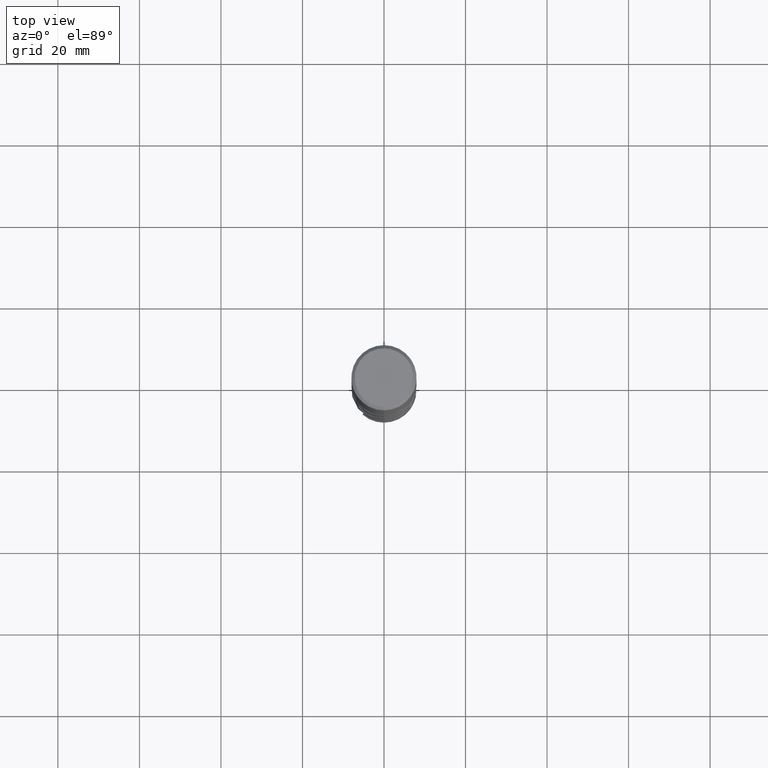
[diagram: clean part render]
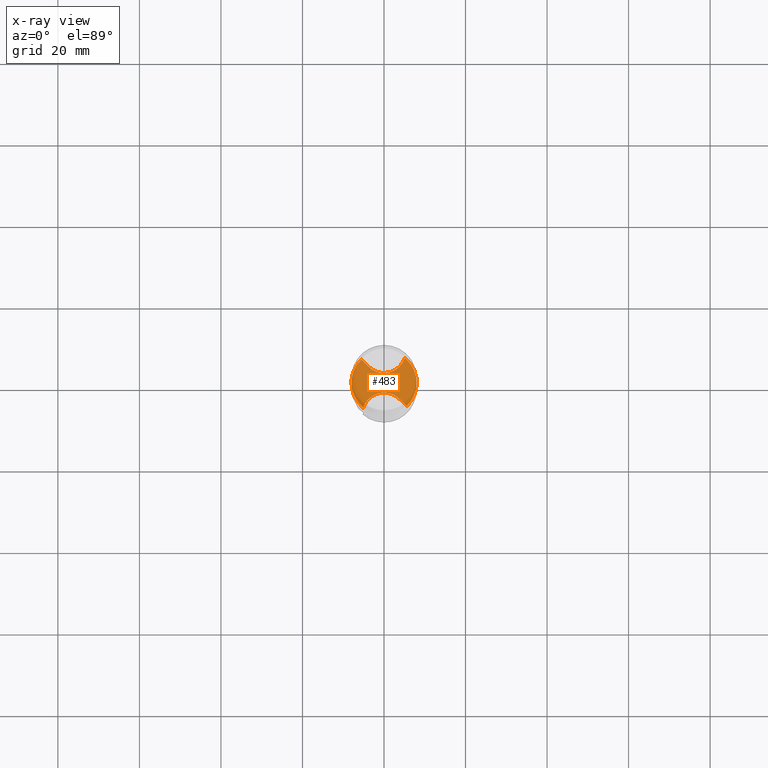
[diagram: x-ray — body ghosted, one internal face saturated and labeled with its STEP entity id]
A machine part, top view, then the same camera in x-ray: the body is ghosted and one INTERNAL B-rep face — a face not visible from any outside direction — is saturated and labeled: STEP entity #483.
In plain terms, the highlighted planar face has unit normal (-0, 0, 1).
Its self-contained STEP definition (entity closure, byte-faithful):
#325=VERTEX_POINT('',#807);
#369=EDGE_CURVE('',#465,#623,#855,.T.);
#417=VERTEX_POINT('',#907);
#465=VERTEX_POINT('',#960);
#483=ADVANCED_FACE('',(#980),#981,.T.);
#501=VERTEX_POINT('',#1003);
#567=EDGE_CURVE('',#501,#417,#1073,.T.);
#623=VERTEX_POINT('',#1134);
#657=EDGE_CURVE('',#683,#325,#1170,.T.);
#669=EDGE_CURVE('',#501,#623,#1183,.T.);
#683=VERTEX_POINT('',#1197);
#697=EDGE_CURVE('',#417,#325,#1211,.T.);
#699=EDGE_CURVE('',#683,#465,#1213,.T.);
#807=CARTESIAN_POINT('',(5.56186814983096,-5.75013240664039,-74.3));
#855=B_SPLINE_CURVE_WITH_KNOTS('',3,(#3176,#3177,#3178,#3179),.UNSPECIFIED.,.F.,.F.,(4,4),(0.0,5.75465496223208),.UNSPECIFIED.);
#907=CARTESIAN_POINT('',(3.77436116390051,-3.96243725254428,-74.3));
#960=CARTESIAN_POINT('',(-3.77436116390051,3.96243725254428,-74.3));
#980=FACE_OUTER_BOUND('',#5328,.T.);
#981=PLANE('',#5329);
#1003=CARTESIAN_POINT('',(-5.09530569940748,-6.16735436306246,-74.3));
#1073=B_SPLINE_CURVE_WITH_KNOTS('',3,(#5866,#5867,#5868,#5869,#5870,#5871,#5872,#5873,#5874,#5875,#5876,#5877,#5878,#5879,#5880,#5881),.UNSPECIFIED.,.F.,.F.,(4,2,2,2,2,2,2,4),(0.0,2.08337084065761,4.16657645136109,6.24975712284436,8.33303368603549,10.4164709573417,11.6677842785257,12.9191122973435),.UNSPECIFIED.);
#1134=CARTESIAN_POINT('',(-5.56186814983096,5.75013240664038,-74.3));
#1170=CIRCLE('',#6612,7.9999);
#1183=CIRCLE('',#6807,7.9999);
#1197=CARTESIAN_POINT('',(5.09530569940748,6.16735436306246,-74.3));
#1211=B_SPLINE_CURVE_WITH_KNOTS('',3,(#7254,#7255,#7256,#7257),.UNSPECIFIED.,.F.,.F.,(4,4),(0.0,5.75465496223208),.UNSPECIFIED.);
#1213=B_SPLINE_CURVE_WITH_KNOTS('',3,(#7260,#7261,#7262,#7263,#7264,#7265,#7266,#7267,#7268,#7269,#7270,#7271,#7272,#7273,#7274,#7275),.UNSPECIFIED.,.F.,.F.,(4,2,2,2,2,2,2,4),(0.0,2.08337084065775,4.16657645136131,6.2497571228446,8.33303368603575,10.416470957342,11.667784278526,12.9191122973437),.UNSPECIFIED.);
#3176=CARTESIAN_POINT('',(-3.77436116397123,3.96243725247358,-74.3));
#3177=CARTESIAN_POINT('',(-5.13067863308301,5.31889014477034,-74.3));
#3178=CARTESIAN_POINT('',(-6.50410469146548,6.69246921326466,-74.3));
#3179=CARTESIAN_POINT('',(-7.86136136422148,8.0499,-74.3));
#5328=EDGE_LOOP('',(#7597,#7598,#7599,#7600,#7601,#7602));
#5329=AXIS2_PLACEMENT_3D('',#7603,#7604,#7605);
#5866=CARTESIAN_POINT('',(-5.3207943477172,-8.0499,-74.3));
#5867=CARTESIAN_POINT('',(-5.36208887839884,-7.35667188976945,-74.3));
#5868=CARTESIAN_POINT('',(-5.26758753959057,-6.66200866277121,-74.3));
#5869=CARTESIAN_POINT('',(-4.81762596069779,-5.34806138381677,-74.3));
#5870=CARTESIAN_POINT('',(-4.46649009566748,-4.74133949802184,-74.3));
#5871=CARTESIAN_POINT('',(-3.5514142434348,-3.69664781702143,-74.3));
#5872=CARTESIAN_POINT('',(-2.99622930668951,-3.26866827107324,-74.3));
#5873=CARTESIAN_POINT('',(-1.75302802457231,-2.6495860583327,-74.3));
#5874=CARTESIAN_POINT('',(-1.07689509648539,-2.46441473140878,-74.3));
#5875=CARTESIAN_POINT('',(0.308348715234525,-2.36364660771347,-74.3));
#5876=CARTESIAN_POINT('',(1.00421663769344,-2.4490338965559,-74.3));
#5877=CARTESIAN_POINT('',(2.06048838302071,-2.79531478876044,-74.3));
#5878=CARTESIAN_POINT('',(2.44023166737119,-2.97129697097539,-74.3));
#5879=CARTESIAN_POINT('',(3.15092904092677,-3.40813057843922,-74.3));
#5880=CARTESIAN_POINT('',(3.47943645307674,-3.66747948246727,-74.3));
#5881=CARTESIAN_POINT('',(3.77436116390052,-3.96243725254428,-74.3));
#6612=AXIS2_PLACEMENT_3D('',#7789,#7790,#7791);
#6807=AXIS2_PLACEMENT_3D('',#7816,#7817,#7818);
#7254=CARTESIAN_POINT('',(3.77436116397123,-3.96243725247358,-74.3));
#7255=CARTESIAN_POINT('',(5.13067863308301,-5.31889014477034,-74.3));
#7256=CARTESIAN_POINT('',(6.50410469146548,-6.69246921326466,-74.3));
#7257=CARTESIAN_POINT('',(7.86136136422148,-8.0499,-74.3));
#7260=CARTESIAN_POINT('',(5.3207943477172,8.0499,-74.3));
#7261=CARTESIAN_POINT('',(5.36208887839884,7.3566718897694,-74.3));
#7262=CARTESIAN_POINT('',(5.26758753959056,6.66200866277119,-74.3));
#7263=CARTESIAN_POINT('',(4.81762596069779,5.34806138381681,-74.3));
#7264=CARTESIAN_POINT('',(4.46649009566749,4.74133949802185,-74.3));
#7265=CARTESIAN_POINT('',(3.5514142434348,3.69664781702143,-74.3));
#7266=CARTESIAN_POINT('',(2.99622930668951,3.26866827107324,-74.3));
#7267=CARTESIAN_POINT('',(1.75302802457232,2.6495860583327,-74.3));
#7268=CARTESIAN_POINT('',(1.07689509648541,2.46441473140878,-74.3));
#7269=CARTESIAN_POINT('',(-0.308348715234514,2.36364660771347,-74.3));
#7270=CARTESIAN_POINT('',(-1.00421663769343,2.4490338965559,-74.3));
#7271=CARTESIAN_POINT('',(-2.06048838302071,2.79531478876044,-74.3));
#7272=CARTESIAN_POINT('',(-2.44023166737119,2.97129697097539,-74.3));
#7273=CARTESIAN_POINT('',(-3.15092904092677,3.40813057843922,-74.3));
#7274=CARTESIAN_POINT('',(-3.47943645307673,3.66747948246727,-74.3));
#7275=CARTESIAN_POINT('',(-3.77436116390052,3.96243725254428,-74.3));
#7597=ORIENTED_EDGE('',*,*,#697,.T.);
#7598=ORIENTED_EDGE('',*,*,#657,.F.);
#7599=ORIENTED_EDGE('',*,*,#699,.T.);
#7600=ORIENTED_EDGE('',*,*,#369,.T.);
#7601=ORIENTED_EDGE('',*,*,#669,.F.);
#7602=ORIENTED_EDGE('',*,*,#567,.T.);
#7603=CARTESIAN_POINT('',(0.0,3.99995,-74.3));
#7604=DIRECTION('',(-0.0,0.0,1.0));
#7605=DIRECTION('',(0.0,-1.0,0.0));
#7789=CARTESIAN_POINT('',(0.0,0.0,-74.3));
#7790=DIRECTION('',(0.0,0.0,-1.0));
#7791=DIRECTION('',(0.0,1.0,0.0));
#7816=CARTESIAN_POINT('',(0.0,0.0,-74.3));
#7817=DIRECTION('',(0.0,0.0,-1.0));
#7818=DIRECTION('',(0.0,1.0,0.0));